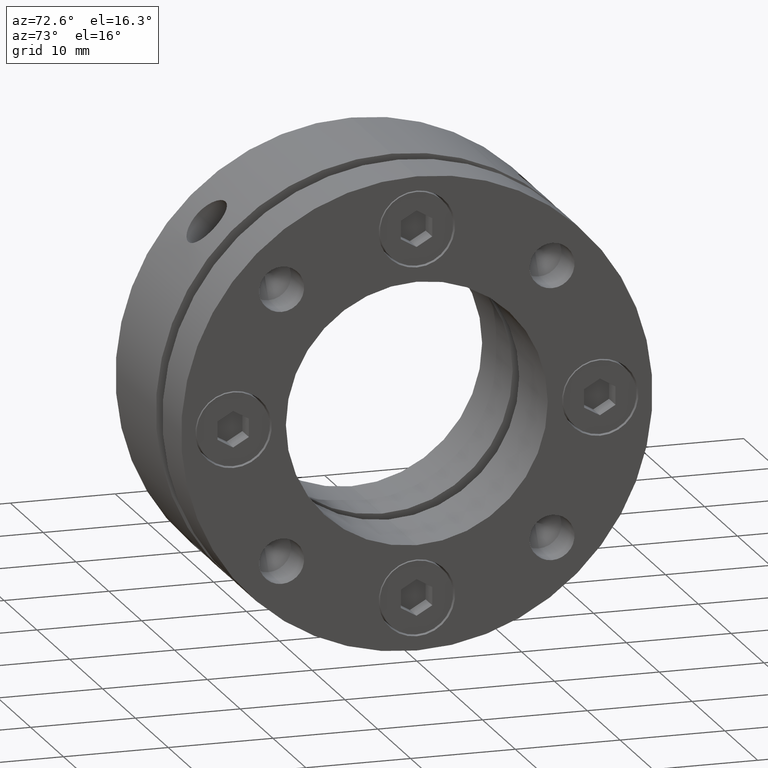
[diagram: clean part render]
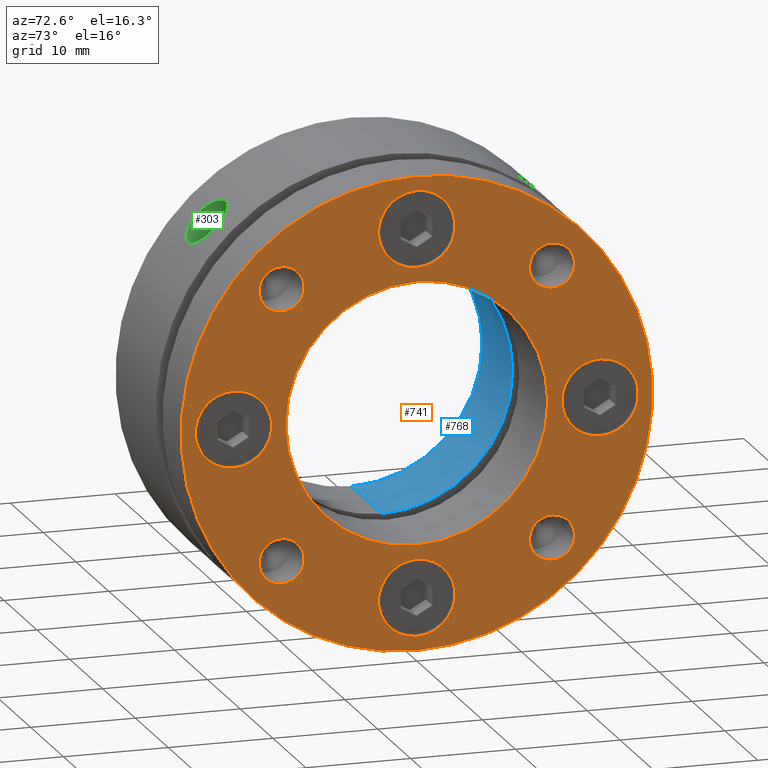
[diagram: same view with three faces highlighted in distinct colors, each labeled with its STEP entity id]
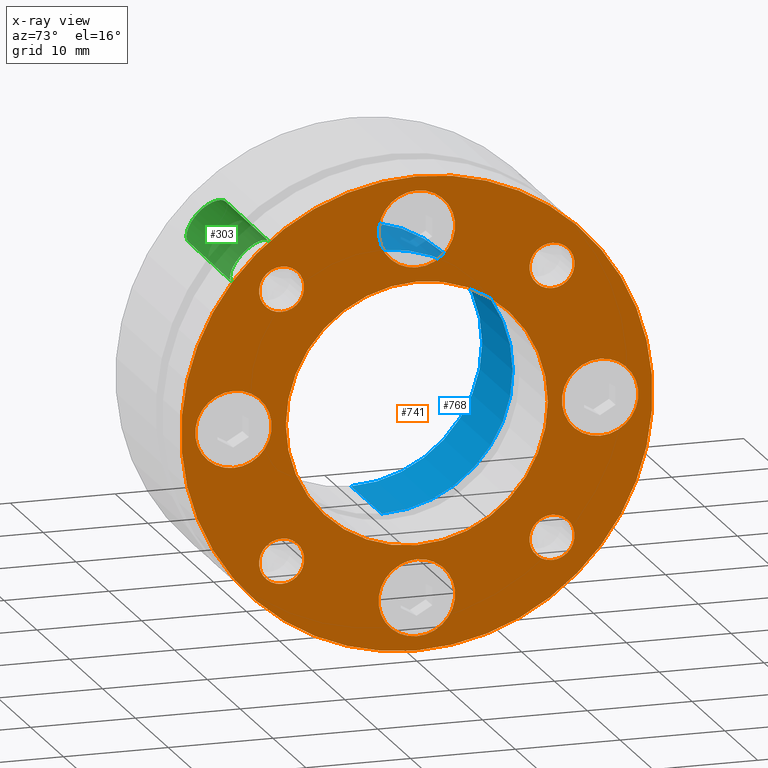
[diagram: x-ray of the same camera — body ghosted, the three highlighted faces saturated]
A machine part, auxiliary view with three faces highlighted in distinct colors.
The next image is the same camera in x-ray (body ghosted, the three faces saturated) — at least one of them is partly hidden behind the body in this view.
Their STEP definitions:

[orange] entity #741 — the highlighted planar face has unit normal (1, 0, 0).
#39 = EDGE_LOOP ( 'NONE', ( #976, #977 ) ) ;
#40 = EDGE_LOOP ( 'NONE', ( #974, #975 ) ) ;
#43 = EDGE_LOOP ( 'NONE', ( #972, #973 ) ) ;
#44 = EDGE_LOOP ( 'NONE', ( #960, #961 ) ) ;
#47 = EDGE_LOOP ( 'NONE', ( #966, #967 ) ) ;
#54 = EDGE_LOOP ( 'NONE', ( #962, #963 ) ) ;
#60 = EDGE_LOOP ( 'NONE', ( #968, #969 ) ) ;
#65 = EDGE_LOOP ( 'NONE', ( #964, #965 ) ) ;
#69 = EDGE_LOOP ( 'NONE', ( #970, #971 ) ) ;
#116 = EDGE_LOOP ( 'NONE', ( #958, #959 ) ) ;
#529 = VERTEX_POINT ( 'NONE', #2458 ) ;
#530 = VERTEX_POINT ( 'NONE', #2459 ) ;
#532 = VERTEX_POINT ( 'NONE', #2461 ) ;
#533 = VERTEX_POINT ( 'NONE', #2462 ) ;
#536 = VERTEX_POINT ( 'NONE', #2465 ) ;
#537 = VERTEX_POINT ( 'NONE', #2466 ) ;
#540 = VERTEX_POINT ( 'NONE', #2469 ) ;
#541 = VERTEX_POINT ( 'NONE', #2470 ) ;
#544 = VERTEX_POINT ( 'NONE', #2473 ) ;
#545 = VERTEX_POINT ( 'NONE', #2474 ) ;
#548 = VERTEX_POINT ( 'NONE', #2477 ) ;
#549 = VERTEX_POINT ( 'NONE', #2478 ) ;
#552 = VERTEX_POINT ( 'NONE', #2481 ) ;
#553 = VERTEX_POINT ( 'NONE', #2482 ) ;
#556 = VERTEX_POINT ( 'NONE', #2485 ) ;
#557 = VERTEX_POINT ( 'NONE', #2486 ) ;
#560 = VERTEX_POINT ( 'NONE', #2489 ) ;
#561 = VERTEX_POINT ( 'NONE', #2490 ) ;
#564 = VERTEX_POINT ( 'NONE', #2493 ) ;
#565 = VERTEX_POINT ( 'NONE', #2494 ) ;
#741 = ADVANCED_FACE ( 'NONE', ( #1679, #1687, #1683, #1681, #1685, #1688, #1689, #1690, #1691, #1692 ), #2584, .T. ) ;
#805 = EDGE_CURVE ( 'NONE', #529, #530, #3096, .T. ) ;
#809 = EDGE_CURVE ( 'NONE', #532, #533, #3102, .T. ) ;
#813 = EDGE_CURVE ( 'NONE', #536, #537, #3107, .T. ) ;
#817 = EDGE_CURVE ( 'NONE', #540, #541, #3113, .T. ) ;
#821 = EDGE_CURVE ( 'NONE', #544, #545, #3119, .T. ) ;
#825 = EDGE_CURVE ( 'NONE', #548, #549, #3125, .T. ) ;
#829 = EDGE_CURVE ( 'NONE', #552, #553, #3131, .T. ) ;
#833 = EDGE_CURVE ( 'NONE', #556, #557, #3137, .T. ) ;
#837 = EDGE_CURVE ( 'NONE', #560, #561, #3143, .T. ) ;
#841 = EDGE_CURVE ( 'NONE', #564, #565, #3149, .T. ) ;
#855 = EDGE_CURVE ( 'NONE', #565, #564, #3174, .T. ) ;
#856 = EDGE_CURVE ( 'NONE', #561, #560, #3175, .T. ) ;
#857 = EDGE_CURVE ( 'NONE', #557, #556, #3176, .T. ) ;
#858 = EDGE_CURVE ( 'NONE', #553, #552, #3177, .T. ) ;
#860 = EDGE_CURVE ( 'NONE', #549, #548, #3179, .T. ) ;
#862 = EDGE_CURVE ( 'NONE', #545, #544, #3181, .T. ) ;
#864 = EDGE_CURVE ( 'NONE', #541, #540, #3183, .T. ) ;
#866 = EDGE_CURVE ( 'NONE', #537, #536, #3185, .T. ) ;
#867 = EDGE_CURVE ( 'NONE', #533, #532, #3186, .T. ) ;
#868 = EDGE_CURVE ( 'NONE', #530, #529, #3187, .T. ) ;
#958 = ORIENTED_EDGE ( 'NONE', *, *, #809, .T. ) ;
#959 = ORIENTED_EDGE ( 'NONE', *, *, #867, .T. ) ;
#960 = ORIENTED_EDGE ( 'NONE', *, *, #813, .T. ) ;
#961 = ORIENTED_EDGE ( 'NONE', *, *, #866, .T. ) ;
#962 = ORIENTED_EDGE ( 'NONE', *, *, #817, .T. ) ;
#963 = ORIENTED_EDGE ( 'NONE', *, *, #864, .T. ) ;
#964 = ORIENTED_EDGE ( 'NONE', *, *, #821, .T. ) ;
#965 = ORIENTED_EDGE ( 'NONE', *, *, #862, .T. ) ;
#966 = ORIENTED_EDGE ( 'NONE', *, *, #825, .T. ) ;
#967 = ORIENTED_EDGE ( 'NONE', *, *, #860, .T. ) ;
#968 = ORIENTED_EDGE ( 'NONE', *, *, #829, .T. ) ;
#969 = ORIENTED_EDGE ( 'NONE', *, *, #858, .T. ) ;
#970 = ORIENTED_EDGE ( 'NONE', *, *, #833, .T. ) ;
#971 = ORIENTED_EDGE ( 'NONE', *, *, #857, .T. ) ;
#972 = ORIENTED_EDGE ( 'NONE', *, *, #837, .T. ) ;
#973 = ORIENTED_EDGE ( 'NONE', *, *, #856, .T. ) ;
#974 = ORIENTED_EDGE ( 'NONE', *, *, #841, .T. ) ;
#975 = ORIENTED_EDGE ( 'NONE', *, *, #855, .T. ) ;
#976 = ORIENTED_EDGE ( 'NONE', *, *, #868, .F. ) ;
#977 = ORIENTED_EDGE ( 'NONE', *, *, #805, .F. ) ;
#1318 = AXIS2_PLACEMENT_3D ( 'NONE', #2586, #2582, #2588 ) ;
#1369 = AXIS2_PLACEMENT_3D ( 'NONE', #2764, #2765, #2766 ) ;
#1371 = AXIS2_PLACEMENT_3D ( 'NONE', #2774, #2775, #2776 ) ;
#1373 = AXIS2_PLACEMENT_3D ( 'NONE', #2784, #2785, #2786 ) ;
#1375 = AXIS2_PLACEMENT_3D ( 'NONE', #2794, #2795, #2796 ) ;
#1377 = AXIS2_PLACEMENT_3D ( 'NONE', #2804, #2805, #2806 ) ;
#1379 = AXIS2_PLACEMENT_3D ( 'NONE', #2814, #2815, #2816 ) ;
#1381 = AXIS2_PLACEMENT_3D ( 'NONE', #2824, #2825, #2826 ) ;
#1383 = AXIS2_PLACEMENT_3D ( 'NONE', #2834, #2835, #2836 ) ;
#1385 = AXIS2_PLACEMENT_3D ( 'NONE', #2844, #2845, #2846 ) ;
#1387 = AXIS2_PLACEMENT_3D ( 'NONE', #2856, #2857, #2858 ) ;
#1392 = AXIS2_PLACEMENT_3D ( 'NONE', #2885, #2886, #2887 ) ;
#1393 = AXIS2_PLACEMENT_3D ( 'NONE', #2888, #2889, #2890 ) ;
#1394 = AXIS2_PLACEMENT_3D ( 'NONE', #2891, #2892, #2893 ) ;
#1395 = AXIS2_PLACEMENT_3D ( 'NONE', #2894, #2895, #2896 ) ;
#1397 = AXIS2_PLACEMENT_3D ( 'NONE', #2900, #2901, #2902 ) ;
#1399 = AXIS2_PLACEMENT_3D ( 'NONE', #2906, #2907, #2908 ) ;
#1401 = AXIS2_PLACEMENT_3D ( 'NONE', #2912, #2913, #2914 ) ;
#1403 = AXIS2_PLACEMENT_3D ( 'NONE', #2918, #2919, #2920 ) ;
#1404 = AXIS2_PLACEMENT_3D ( 'NONE', #2921, #2922, #2923 ) ;
#1405 = AXIS2_PLACEMENT_3D ( 'NONE', #2924, #2925, #2926 ) ;
#1679 = FACE_BOUND ( 'NONE', #116, .T. ) ;
#1681 = FACE_BOUND ( 'NONE', #65, .T. ) ;
#1683 = FACE_BOUND ( 'NONE', #54, .T. ) ;
#1685 = FACE_BOUND ( 'NONE', #47, .T. ) ;
#1687 = FACE_BOUND ( 'NONE', #44, .T. ) ;
#1688 = FACE_BOUND ( 'NONE', #60, .T. ) ;
#1689 = FACE_BOUND ( 'NONE', #69, .T. ) ;
#1690 = FACE_BOUND ( 'NONE', #43, .T. ) ;
#1691 = FACE_BOUND ( 'NONE', #40, .T. ) ;
#1692 = FACE_OUTER_BOUND ( 'NONE', #39, .T. ) ;
#2458 = CARTESIAN_POINT ( 'NONE',  ( 19.99999999999999300, 2.755455298081544800E-015, 22.50000000000000000 ) ) ;
#2459 = CARTESIAN_POINT ( 'NONE',  ( 19.99999999999999300, 0.0000000000000000000, -22.50000000000000000 ) ) ;
#2461 = CARTESIAN_POINT ( 'NONE',  ( 19.99999999999999600, 0.0000000000000000000, -12.50000000000000000 ) ) ;
#2462 = CARTESIAN_POINT ( 'NONE',  ( 19.99999999999999600, 1.530808498934191500E-015, 12.50000000000000000 ) ) ;
#2465 = CARTESIAN_POINT ( 'NONE',  ( 19.99999999999999600, 0.0000000000000000000, 13.85000000000000500 ) ) ;
#2466 = CARTESIAN_POINT ( 'NONE',  ( 19.99999999999999600, 4.469960816887838400E-016, 21.15000000000000600 ) ) ;
#2469 = CARTESIAN_POINT ( 'NONE',  ( 19.99999999999999600, -17.50000000000000400, -3.649999999999999000 ) ) ;
#2470 = CARTESIAN_POINT ( 'NONE',  ( 19.99999999999999600, -17.50000000000000400, 3.650000000000000800 ) ) ;
#2473 = CARTESIAN_POINT ( 'NONE',  ( 19.99999999999999600, -2.143131999999999800E-015, -21.15000000000000600 ) ) ;
#2474 = CARTESIAN_POINT ( 'NONE',  ( 19.99999999999999600, -1.696135918311216000E-015, -13.85000000000000500 ) ) ;
#2477 = CARTESIAN_POINT ( 'NONE',  ( 19.99999999999999600, 17.50000000000000400, -3.650000000000003000 ) ) ;
#2478 = CARTESIAN_POINT ( 'NONE',  ( 19.99999999999999600, 17.50000000000000400, 3.649999999999996800 ) ) ;
#2481 = CARTESIAN_POINT ( 'NONE',  ( 19.99999999999999600, -12.90469875665449200, 10.75469875665449300 ) ) ;
#2482 = CARTESIAN_POINT ( 'NONE',  ( 19.99999999999999600, -12.90469875665449200, 15.05469875665449400 ) ) ;
#2485 = CARTESIAN_POINT ( 'NONE',  ( 19.99999999999999600, -12.90469875665449400, -15.05469875665449000 ) ) ;
#2486 = CARTESIAN_POINT ( 'NONE',  ( 19.99999999999999600, -12.90469875665449400, -10.75469875665449300 ) ) ;
#2489 = CARTESIAN_POINT ( 'NONE',  ( 19.99999999999999600, 12.90469875665449200, -15.05469875665449400 ) ) ;
#2490 = CARTESIAN_POINT ( 'NONE',  ( 19.99999999999999600, 12.90469875665449200, -10.75469875665449300 ) ) ;
#2493 = CARTESIAN_POINT ( 'NONE',  ( 19.99999999999999600, 12.90469875665449500, 10.75469875665449000 ) ) ;
#2494 = CARTESIAN_POINT ( 'NONE',  ( 19.99999999999999600, 12.90469875665449500, 15.05469875665449000 ) ) ;
#2582 = DIRECTION ( 'NONE',  ( 1.000000000000000000, -0.0000000000000000000, 0.0000000000000000000 ) ) ;
#2584 = PLANE ( 'NONE',  #1318 ) ;
#2586 = CARTESIAN_POINT ( 'NONE',  ( 19.99999999999999600, 17.50000000000000000, 0.0000000000000000000 ) ) ;
#2588 = DIRECTION ( 'NONE',  ( 0.0000000000000000000, 0.0000000000000000000, -1.000000000000000000 ) ) ;
#2764 = CARTESIAN_POINT ( 'NONE',  ( 19.99999999999999300, 0.0000000000000000000, 0.0000000000000000000 ) ) ;
#2765 = DIRECTION ( 'NONE',  ( -1.000000000000000000, -0.0000000000000000000, -0.0000000000000000000 ) ) ;
#2766 = DIRECTION ( 'NONE',  ( 0.0000000000000000000, 0.0000000000000000000, -1.000000000000000000 ) ) ;
#2774 = CARTESIAN_POINT ( 'NONE',  ( 19.99999999999999600, 0.0000000000000000000, 0.0000000000000000000 ) ) ;
#2775 = DIRECTION ( 'NONE',  ( -1.000000000000000000, -0.0000000000000000000, -0.0000000000000000000 ) ) ;
#2776 = DIRECTION ( 'NONE',  ( 0.0000000000000000000, 0.0000000000000000000, -1.000000000000000000 ) ) ;
#2784 = CARTESIAN_POINT ( 'NONE',  ( 19.99999999999999600, 0.0000000000000000000, 17.50000000000000400 ) ) ;
#2785 = DIRECTION ( 'NONE',  ( -1.000000000000000000, -0.0000000000000000000, -0.0000000000000000000 ) ) ;
#2786 = DIRECTION ( 'NONE',  ( 0.0000000000000000000, 0.0000000000000000000, -1.000000000000000000 ) ) ;
#2794 = CARTESIAN_POINT ( 'NONE',  ( 19.99999999999999600, -17.50000000000000400, 1.071565999999999900E-015 ) ) ;
#2795 = DIRECTION ( 'NONE',  ( -1.000000000000000000, -0.0000000000000000000, -0.0000000000000000000 ) ) ;
#2796 = DIRECTION ( 'NONE',  ( 0.0000000000000000000, 0.0000000000000000000, -1.000000000000000000 ) ) ;
#2804 = CARTESIAN_POINT ( 'NONE',  ( 19.99999999999999600, -2.143131999999999800E-015, -17.50000000000000400 ) ) ;
#2805 = DIRECTION ( 'NONE',  ( -1.000000000000000000, -0.0000000000000000000, -0.0000000000000000000 ) ) ;
#2806 = DIRECTION ( 'NONE',  ( 0.0000000000000000000, 0.0000000000000000000, -1.000000000000000000 ) ) ;
#2814 = CARTESIAN_POINT ( 'NONE',  ( 19.99999999999999600, 17.50000000000000400, -3.214698000000000300E-015 ) ) ;
#2815 = DIRECTION ( 'NONE',  ( -1.000000000000000000, -0.0000000000000000000, -0.0000000000000000000 ) ) ;
#2816 = DIRECTION ( 'NONE',  ( 0.0000000000000000000, 0.0000000000000000000, -1.000000000000000000 ) ) ;
#2824 = CARTESIAN_POINT ( 'NONE',  ( 19.99999999999999600, -12.90469875665449200, 12.90469875665449400 ) ) ;
#2825 = DIRECTION ( 'NONE',  ( -1.000000000000000000, -0.0000000000000000000, -0.0000000000000000000 ) ) ;
#2826 = DIRECTION ( 'NONE',  ( 0.0000000000000000000, 0.0000000000000000000, -1.000000000000000000 ) ) ;
#2834 = CARTESIAN_POINT ( 'NONE',  ( 19.99999999999999600, -12.90469875665449400, -12.90469875665449200 ) ) ;
#2835 = DIRECTION ( 'NONE',  ( -1.000000000000000000, -0.0000000000000000000, -0.0000000000000000000 ) ) ;
#2836 = DIRECTION ( 'NONE',  ( 0.0000000000000000000, 0.0000000000000000000, -1.000000000000000000 ) ) ;
#2844 = CARTESIAN_POINT ( 'NONE',  ( 19.99999999999999600, 12.90469875665449200, -12.90469875665449400 ) ) ;
#2845 = DIRECTION ( 'NONE',  ( -1.000000000000000000, -0.0000000000000000000, -0.0000000000000000000 ) ) ;
#2846 = DIRECTION ( 'NONE',  ( 0.0000000000000000000, 0.0000000000000000000, -1.000000000000000000 ) ) ;
#2856 = CARTESIAN_POINT ( 'NONE',  ( 19.99999999999999600, 12.90469875665449500, 12.90469875665449000 ) ) ;
#2857 = DIRECTION ( 'NONE',  ( -1.000000000000000000, -0.0000000000000000000, -0.0000000000000000000 ) ) ;
#2858 = DIRECTION ( 'NONE',  ( 0.0000000000000000000, 0.0000000000000000000, -1.000000000000000000 ) ) ;
#2885 = CARTESIAN_POINT ( 'NONE',  ( 19.99999999999999600, 12.90469875665449500, 12.90469875665449000 ) ) ;
#2886 = DIRECTION ( 'NONE',  ( -1.000000000000000000, -0.0000000000000000000, -0.0000000000000000000 ) ) ;
#2887 = DIRECTION ( 'NONE',  ( 0.0000000000000000000, 0.0000000000000000000, -1.000000000000000000 ) ) ;
#2888 = CARTESIAN_POINT ( 'NONE',  ( 19.99999999999999600, 12.90469875665449200, -12.90469875665449400 ) ) ;
#2889 = DIRECTION ( 'NONE',  ( -1.000000000000000000, -0.0000000000000000000, -0.0000000000000000000 ) ) ;
#2890 = DIRECTION ( 'NONE',  ( 0.0000000000000000000, 0.0000000000000000000, -1.000000000000000000 ) ) ;
#2891 = CARTESIAN_POINT ( 'NONE',  ( 19.99999999999999600, -12.90469875665449400, -12.90469875665449200 ) ) ;
#2892 = DIRECTION ( 'NONE',  ( -1.000000000000000000, -0.0000000000000000000, -0.0000000000000000000 ) ) ;
#2893 = DIRECTION ( 'NONE',  ( 0.0000000000000000000, 0.0000000000000000000, -1.000000000000000000 ) ) ;
#2894 = CARTESIAN_POINT ( 'NONE',  ( 19.99999999999999600, -12.90469875665449200, 12.90469875665449400 ) ) ;
#2895 = DIRECTION ( 'NONE',  ( -1.000000000000000000, -0.0000000000000000000, -0.0000000000000000000 ) ) ;
#2896 = DIRECTION ( 'NONE',  ( 0.0000000000000000000, 0.0000000000000000000, -1.000000000000000000 ) ) ;
#2900 = CARTESIAN_POINT ( 'NONE',  ( 19.99999999999999600, 17.50000000000000400, -3.214698000000000300E-015 ) ) ;
#2901 = DIRECTION ( 'NONE',  ( -1.000000000000000000, -0.0000000000000000000, -0.0000000000000000000 ) ) ;
#2902 = DIRECTION ( 'NONE',  ( 0.0000000000000000000, 0.0000000000000000000, -1.000000000000000000 ) ) ;
#2906 = CARTESIAN_POINT ( 'NONE',  ( 19.99999999999999600, -2.143131999999999800E-015, -17.50000000000000400 ) ) ;
#2907 = DIRECTION ( 'NONE',  ( -1.000000000000000000, -0.0000000000000000000, -0.0000000000000000000 ) ) ;
#2908 = DIRECTION ( 'NONE',  ( 0.0000000000000000000, 0.0000000000000000000, -1.000000000000000000 ) ) ;
#2912 = CARTESIAN_POINT ( 'NONE',  ( 19.99999999999999600, -17.50000000000000400, 1.071565999999999900E-015 ) ) ;
#2913 = DIRECTION ( 'NONE',  ( -1.000000000000000000, -0.0000000000000000000, -0.0000000000000000000 ) ) ;
#2914 = DIRECTION ( 'NONE',  ( 0.0000000000000000000, 0.0000000000000000000, -1.000000000000000000 ) ) ;
#2918 = CARTESIAN_POINT ( 'NONE',  ( 19.99999999999999600, 0.0000000000000000000, 17.50000000000000400 ) ) ;
#2919 = DIRECTION ( 'NONE',  ( -1.000000000000000000, -0.0000000000000000000, -0.0000000000000000000 ) ) ;
#2920 = DIRECTION ( 'NONE',  ( 0.0000000000000000000, 0.0000000000000000000, -1.000000000000000000 ) ) ;
#2921 = CARTESIAN_POINT ( 'NONE',  ( 19.99999999999999600, 0.0000000000000000000, 0.0000000000000000000 ) ) ;
#2922 = DIRECTION ( 'NONE',  ( -1.000000000000000000, -0.0000000000000000000, -0.0000000000000000000 ) ) ;
#2923 = DIRECTION ( 'NONE',  ( 0.0000000000000000000, 0.0000000000000000000, -1.000000000000000000 ) ) ;
#2924 = CARTESIAN_POINT ( 'NONE',  ( 19.99999999999999300, 0.0000000000000000000, 0.0000000000000000000 ) ) ;
#2925 = DIRECTION ( 'NONE',  ( -1.000000000000000000, -0.0000000000000000000, -0.0000000000000000000 ) ) ;
#2926 = DIRECTION ( 'NONE',  ( 0.0000000000000000000, 0.0000000000000000000, -1.000000000000000000 ) ) ;
#3096 = CIRCLE ( 'NONE', #1369, 22.50000000000000000 ) ;
#3102 = CIRCLE ( 'NONE', #1371, 12.50000000000000000 ) ;
#3107 = CIRCLE ( 'NONE', #1373, 3.650000000000000400 ) ;
#3113 = CIRCLE ( 'NONE', #1375, 3.649999999999999900 ) ;
#3119 = CIRCLE ( 'NONE', #1377, 3.650000000000000400 ) ;
#3125 = CIRCLE ( 'NONE', #1379, 3.649999999999999900 ) ;
#3131 = CIRCLE ( 'NONE', #1381, 2.150000000000000800 ) ;
#3137 = CIRCLE ( 'NONE', #1383, 2.149999999999999000 ) ;
#3143 = CIRCLE ( 'NONE', #1385, 2.150000000000000800 ) ;
#3149 = CIRCLE ( 'NONE', #1387, 2.150000000000000800 ) ;
#3174 = CIRCLE ( 'NONE', #1392, 2.150000000000000800 ) ;
#3175 = CIRCLE ( 'NONE', #1393, 2.150000000000000800 ) ;
#3176 = CIRCLE ( 'NONE', #1394, 2.149999999999999000 ) ;
#3177 = CIRCLE ( 'NONE', #1395, 2.150000000000000800 ) ;
#3179 = CIRCLE ( 'NONE', #1397, 3.649999999999999900 ) ;
#3181 = CIRCLE ( 'NONE', #1399, 3.650000000000000400 ) ;
#3183 = CIRCLE ( 'NONE', #1401, 3.649999999999999900 ) ;
#3185 = CIRCLE ( 'NONE', #1403, 3.650000000000000400 ) ;
#3186 = CIRCLE ( 'NONE', #1404, 12.50000000000000000 ) ;
#3187 = CIRCLE ( 'NONE', #1405, 22.50000000000000000 ) ;

[blue] entity #768 — the highlighted cylindrical surface (partial cylindrical patch) has radius 12.5 mm, axis along (1, 0, 0).
#4 = EDGE_LOOP ( 'NONE', ( #1106, #1107, #1108, #1109 ) ) ;
#352 = EDGE_CURVE ( 'NONE', #463, #465, #1544, .T. ) ;
#354 = EDGE_CURVE ( 'NONE', #459, #464, #1547, .T. ) ;
#459 = VERTEX_POINT ( 'NONE', #2388 ) ;
#463 = VERTEX_POINT ( 'NONE', #2392 ) ;
#464 = VERTEX_POINT ( 'NONE', #2393 ) ;
#465 = VERTEX_POINT ( 'NONE', #2394 ) ;
#768 = ADVANCED_FACE ( 'NONE', ( #3034 ), #3047, .F. ) ;
#886 = EDGE_CURVE ( 'NONE', #465, #464, #3205, .T. ) ;
#904 = EDGE_CURVE ( 'NONE', #459, #463, #3223, .T. ) ;
#1106 = ORIENTED_EDGE ( 'NONE', *, *, #352, .F. ) ;
#1107 = ORIENTED_EDGE ( 'NONE', *, *, #904, .F. ) ;
#1108 = ORIENTED_EDGE ( 'NONE', *, *, #354, .T. ) ;
#1109 = ORIENTED_EDGE ( 'NONE', *, *, #886, .F. ) ;
#1345 = AXIS2_PLACEMENT_3D ( 'NONE', #2675, #2673, #2671 ) ;
#1423 = AXIS2_PLACEMENT_3D ( 'NONE', #2978, #2979, #2980 ) ;
#1441 = AXIS2_PLACEMENT_3D ( 'NONE', #3299, #3300, #3301 ) ;
#1544 = LINE ( 'NONE', #2221, #1548 ) ;
#1547 = LINE ( 'NONE', #2226, #1551 ) ;
#1548 = VECTOR ( 'NONE', #2220, 1000.000000000000000 ) ;
#1551 = VECTOR ( 'NONE', #2225, 1000.000000000000000 ) ;
#2220 = DIRECTION ( 'NONE',  ( 1.000000000000000000, 0.0000000000000000000, 0.0000000000000000000 ) ) ;
#2221 = CARTESIAN_POINT ( 'NONE',  ( 9.999999999999996400, 1.530808498934191500E-015, 12.50000000000000000 ) ) ;
#2225 = DIRECTION ( 'NONE',  ( 1.000000000000000000, 0.0000000000000000000, 0.0000000000000000000 ) ) ;
#2226 = CARTESIAN_POINT ( 'NONE',  ( 9.999999999999996400, 0.0000000000000000000, -12.50000000000000000 ) ) ;
#2388 = CARTESIAN_POINT ( 'NONE',  ( -3.469446951953614200E-015, 0.0000000000000000000, -12.50000000000000000 ) ) ;
#2392 = CARTESIAN_POINT ( 'NONE',  ( -3.469446951953614200E-015, 1.530808498934191500E-015, 12.50000000000000000 ) ) ;
#2393 = CARTESIAN_POINT ( 'NONE',  ( 9.300000000000022000, 0.0000000000000000000, -12.50000000000000000 ) ) ;
#2394 = CARTESIAN_POINT ( 'NONE',  ( 9.300000000000022000, 1.530808498934191500E-015, 12.50000000000000000 ) ) ;
#2671 = DIRECTION ( 'NONE',  ( 0.0000000000000000000, 0.0000000000000000000, -1.000000000000000000 ) ) ;
#2673 = DIRECTION ( 'NONE',  ( 1.000000000000000000, 0.0000000000000000000, 0.0000000000000000000 ) ) ;
#2675 = CARTESIAN_POINT ( 'NONE',  ( 9.999999999999996400, 0.0000000000000000000, 0.0000000000000000000 ) ) ;
#2978 = CARTESIAN_POINT ( 'NONE',  ( 9.300000000000022000, 0.0000000000000000000, 0.0000000000000000000 ) ) ;
#2979 = DIRECTION ( 'NONE',  ( -1.000000000000000000, -0.0000000000000000000, -0.0000000000000000000 ) ) ;
#2980 = DIRECTION ( 'NONE',  ( 0.0000000000000000000, 0.0000000000000000000, -1.000000000000000000 ) ) ;
#3034 = FACE_OUTER_BOUND ( 'NONE', #4, .T. ) ;
#3047 = CYLINDRICAL_SURFACE ( 'NONE', #1345, 12.50000000000000000 ) ;
#3205 = CIRCLE ( 'NONE', #1423, 12.50000000000000000 ) ;
#3223 = CIRCLE ( 'NONE', #1441, 12.50000000000000000 ) ;
#3299 = CARTESIAN_POINT ( 'NONE',  ( -3.469446951953614200E-015, 0.0000000000000000000, 0.0000000000000000000 ) ) ;
#3300 = DIRECTION ( 'NONE',  ( 1.000000000000000000, 0.0000000000000000000, 0.0000000000000000000 ) ) ;
#3301 = DIRECTION ( 'NONE',  ( 0.0000000000000000000, 0.0000000000000000000, -1.000000000000000000 ) ) ;

[green] entity #303 — the highlighted cylindrical surface (edge-blend (fillet) strip) has radius 2.5 mm, axis along (0, -0.7071, 0.7071).
#75 = ORIENTED_EDGE ( 'NONE', *, *, #339, .F. ) ;
#79 = EDGE_LOOP ( 'NONE', ( #438, #439, #75, #124 ) ) ;
#124 = ORIENTED_EDGE ( 'NONE', *, *, #340, .F. ) ;
#171 = DIRECTION ( 'NONE',  ( 0.0000000000000000000, -0.7071067811865477900, -0.7071067811865471300 ) ) ;
#173 = DIRECTION ( 'NONE',  ( 0.0000000000000000000, -0.7071067811865470200, 0.7071067811865480200 ) ) ;
#174 = CARTESIAN_POINT ( 'NONE',  ( 6.499999999999992900, -13.78858223313767800, 13.78858223313767600 ) ) ;
#303 = ADVANCED_FACE ( 'NONE', ( #1464 ), #1473, .F. ) ;
#333 = EDGE_CURVE ( 'NONE', #444, #446, #1522, .T. ) ;
#338 = EDGE_CURVE ( 'NONE', #444, #450, #1526, .T. ) ;
#339 = EDGE_CURVE ( 'NONE', #449, #450, #418, .T. ) ;
#340 = EDGE_CURVE ( 'NONE', #446, #449, #1524, .T. ) ;
#418 = B_SPLINE_CURVE_WITH_KNOTS ( 'NONE', 3,
 ( #2132, #2129, #2095, #2133, #2134, #2135, #2136, #2137, #2138, #2139, #2140, #2141, #2142, #2143, #2144, #2145, #2146, #2147, #2148, #2149, #2150, #2151, #2152, #2153, #2154, #2155, #2156, #2157, #2158, #2159, #2160, #2161, #2162, #2163 ),
 .UNSPECIFIED., .F., .F.,
 ( 4, 2, 2, 2, 2, 2, 2, 2, 2, 2, 2, 2, 2, 2, 2, 2, 4 ),
 ( 0.01173242231639721000, 0.01222119876057258500, 0.01270997520474796200, 0.01319875164892333700, 0.01368752809309871400, 0.01417630453727408900, 0.01466508098144946400, 0.01515385742562484100, 0.01564263386980021400, 0.01613141031397559100, 0.01662018675815097100, 0.01710896320232634800, 0.01759773964650172800, 0.01808651609067710900, 0.01857529253485248900, 0.01906406897902786600, 0.01955284542320324600 ),
 .UNSPECIFIED. ) ;
#438 = ORIENTED_EDGE ( 'NONE', *, *, #333, .F. ) ;
#439 = ORIENTED_EDGE ( 'NONE', *, *, #338, .T. ) ;
#444 = VERTEX_POINT ( 'NONE', #2376 ) ;
#446 = VERTEX_POINT ( 'NONE', #2377 ) ;
#449 = VERTEX_POINT ( 'NONE', #2379 ) ;
#450 = VERTEX_POINT ( 'NONE', #2380 ) ;
#1241 = AXIS2_PLACEMENT_3D ( 'NONE', #174, #173, #171 ) ;
#1264 = AXIS2_PLACEMENT_3D ( 'NONE', #2054, #2055, #2056 ) ;
#1464 = FACE_OUTER_BOUND ( 'NONE', #79, .T. ) ;
#1473 = CYLINDRICAL_SURFACE ( 'NONE', #1241, 2.500000000000000000 ) ;
#1522 = CIRCLE ( 'NONE', #1264, 2.500000000000000000 ) ;
#1524 = LINE ( 'NONE', #2131, #1529 ) ;
#1526 = LINE ( 'NONE', #2128, #1528 ) ;
#1528 = VECTOR ( 'NONE', #2130, 1000.000000000000000 ) ;
#1529 = VECTOR ( 'NONE', #2164, 1000.000000000000000 ) ;
#2054 = CARTESIAN_POINT ( 'NONE',  ( 6.499999999999992900, -11.66726188957803800, 11.66726188957803200 ) ) ;
#2055 = DIRECTION ( 'NONE',  ( 0.0000000000000000000, -0.7071067811865470200, 0.7071067811865480200 ) ) ;
#2056 = DIRECTION ( 'NONE',  ( 0.0000000000000000000, -0.7071067811865477900, -0.7071067811865471300 ) ) ;
#2095 = CARTESIAN_POINT ( 'NONE',  ( 6.171090007578761100, -17.56890217144555400, 14.05648292721125800 ) ) ;
#2128 = CARTESIAN_POINT ( 'NONE',  ( 6.499999999999992900, -12.02081528017130900, 15.55634918610404500 ) ) ;
#2129 = CARTESIAN_POINT ( 'NONE',  ( 6.336834521531878700, -17.57915525380826700, 14.04362134787553300 ) ) ;
#2130 = DIRECTION ( 'NONE',  ( 0.0000000000000000000, -0.7071067811865470200, 0.7071067811865480200 ) ) ;
#2131 = CARTESIAN_POINT ( 'NONE',  ( 6.499999999999992900, -15.55634918610404700, 12.02081528017130900 ) ) ;
#2132 = CARTESIAN_POINT ( 'NONE',  ( 6.499999999999992900, -17.57915525380826700, 14.04362134787552700 ) ) ;
#2133 = CARTESIAN_POINT ( 'NONE',  ( 5.850448389558097000, -17.52861790615664400, 14.10668600674058500 ) ) ;
#2134 = CARTESIAN_POINT ( 'NONE',  ( 5.694589796624702800, -17.49880229077756900, 14.14375807418896400 ) ) ;
#2135 = CARTESIAN_POINT ( 'NONE',  ( 5.391840746390807100, -17.41927253684769300, 14.24159114565264200 ) ) ;
#2136 = CARTESIAN_POINT ( 'NONE',  ( 5.245677012930385400, -17.36944586711570400, 14.30246863063636600 ) ) ;
#2137 = CARTESIAN_POINT ( 'NONE',  ( 4.975028642675195700, -17.25334612264189400, 14.44230958791972700 ) ) ;
#2138 = CARTESIAN_POINT ( 'NONE',  ( 4.848778738432797800, -17.18664625045742900, 14.52180719922919900 ) ) ;
#2139 = CARTESIAN_POINT ( 'NONE',  ( 4.615488460062465500, -17.03466803667306100, 14.69978838454135500 ) ) ;
#2140 = CARTESIAN_POINT ( 'NONE',  ( 4.512201296588721700, -16.95184193531017100, 14.79538561576184300 ) ) ;
#2141 = CARTESIAN_POINT ( 'NONE',  ( 4.331257138296142500, -16.77231696932634000, 14.99859206723352600 ) ) ;
#2142 = CARTESIAN_POINT ( 'NONE',  ( 4.252970886097018300, -16.67444543535752300, 15.10747557303519200 ) ) ;
#2143 = CARTESIAN_POINT ( 'NONE',  ( 4.127594110941597400, -16.46951109140387400, 15.33062794463080700 ) ) ;
#2144 = CARTESIAN_POINT ( 'NONE',  ( 4.080313794223385100, -16.36293210257587200, 15.44442146952498600 ) ) ;
#2145 = CARTESIAN_POINT ( 'NONE',  ( 4.016349612376156000, -16.14119281509124400, 15.67601977632968700 ) ) ;
#2146 = CARTESIAN_POINT ( 'NONE',  ( 3.999880785371837000, -16.02548652508895800, 15.79433736107236200 ) ) ;
#2147 = CARTESIAN_POINT ( 'NONE',  ( 4.000120529971881400, -15.79175401374240700, 16.02803220019925200 ) ) ;
#2148 = CARTESIAN_POINT ( 'NONE',  ( 4.016463612904607000, -15.67557156238662900, 16.14162339942732400 ) ) ;
#2149 = CARTESIAN_POINT ( 'NONE',  ( 4.080258677617862900, -15.44465651224615100, 16.36270561353397600 ) ) ;
#2150 = CARTESIAN_POINT ( 'NONE',  ( 4.128496438647709400, -15.32868502898407400, 16.47131874734074600 ) ) ;
#2151 = CARTESIAN_POINT ( 'NONE',  ( 4.254206005333722700, -15.10561993020592600, 16.67612582461720200 ) ) ;
#2152 = CARTESIAN_POINT ( 'NONE',  ( 4.331087587242889100, -14.99875953336863300, 16.77217083986406700 ) ) ;
#2153 = CARTESIAN_POINT ( 'NONE',  ( 4.512672305383290400, -14.79487964044526100, 16.95228712139282500 ) ) ;
#2154 = CARTESIAN_POINT ( 'NONE',  ( 4.618250905935206600, -14.69754720084648100, 17.03659122857233800 ) ) ;
#2155 = CARTESIAN_POINT ( 'NONE',  ( 4.848825465913805000, -14.52190685513345500, 17.18655159423804300 ) ) ;
#2156 = CARTESIAN_POINT ( 'NONE',  ( 4.974651334486486200, -14.44243566964261100, 17.25324486753801500 ) ) ;
#2157 = CARTESIAN_POINT ( 'NONE',  ( 5.247985968824259800, -14.30134497684619700, 17.37037530925075800 ) ) ;
#2158 = CARTESIAN_POINT ( 'NONE',  ( 5.393313186711863800, -14.24108610244663200, 17.41968383630842600 ) ) ;
#2159 = CARTESIAN_POINT ( 'NONE',  ( 5.694115060324576500, -14.14394080737749900, 17.49865299877808400 ) ) ;
#2160 = CARTESIAN_POINT ( 'NONE',  ( 5.851819053499025500, -14.10634303127202900, 17.52889400127216700 ) ) ;
#2161 = CARTESIAN_POINT ( 'NONE',  ( 6.174556241274206800, -14.05607052486627000, 17.56923219790033000 ) ) ;
#2162 = CARTESIAN_POINT ( 'NONE',  ( 6.336834231173869900, -14.04362134787551900, 17.57915525380825300 ) ) ;
#2163 = CARTESIAN_POINT ( 'NONE',  ( 6.499999999999992900, -14.04362134787552600, 17.57915525380826700 ) ) ;
#2164 = DIRECTION ( 'NONE',  ( 0.0000000000000000000, -0.7071067811865470200, 0.7071067811865480200 ) ) ;
#2376 = CARTESIAN_POINT ( 'NONE',  ( 6.499999999999992900, -9.899494939038952200, 13.43502884011711500 ) ) ;
#2377 = CARTESIAN_POINT ( 'NONE',  ( 6.499999999999992900, -13.43502884011711800, 9.899494939038953900 ) ) ;
#2379 = CARTESIAN_POINT ( 'NONE',  ( 6.499999999999992900, -17.57915525380826700, 14.04362134787552700 ) ) ;
#2380 = CARTESIAN_POINT ( 'NONE',  ( 6.499999999999992900, -14.04362134787552600, 17.57915525380826700 ) ) ;